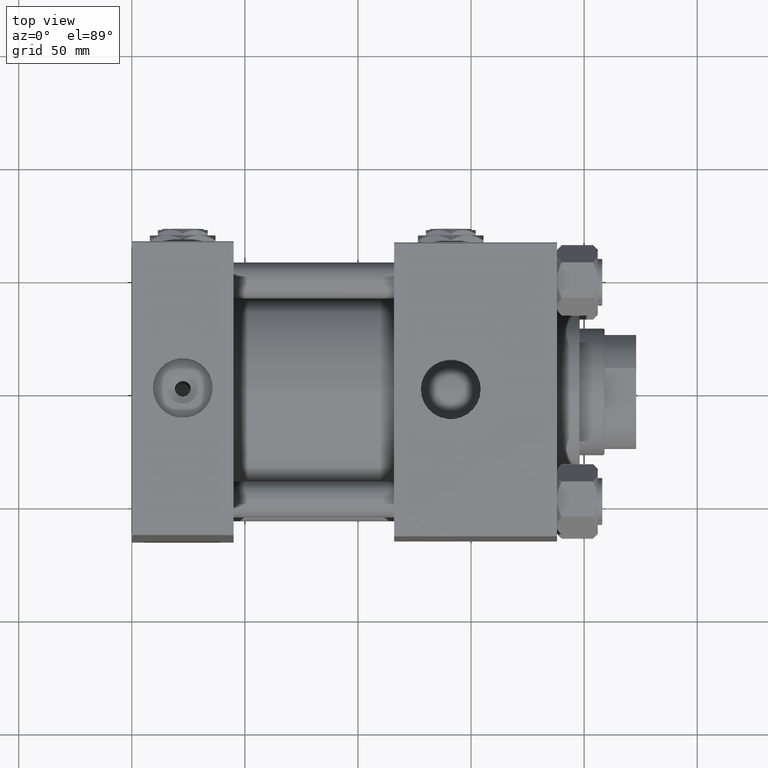
[diagram: clean part render]
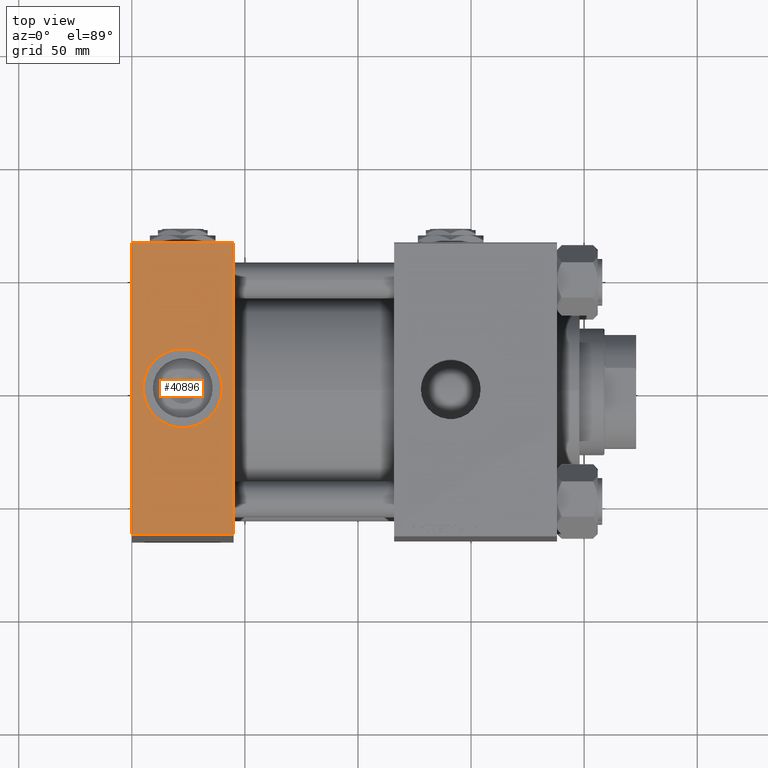
[diagram: same view with one face highlighted and labeled with its STEP entity id]
A machine part, top view. The second image highlights one B-rep face of the part: STEP entity #40896.
In plain terms, the highlighted planar face has unit normal (0, 0, -1).
Its self-contained STEP definition (entity closure, byte-faithful):
#206 = EDGE_CURVE ( 'NONE', #35310, #47038, #4604, .T. ) ;
#354 = EDGE_LOOP ( 'NONE', ( #12120, #50912, #564, #20967 ) ) ;
#564 = ORIENTED_EDGE ( 'NONE', *, *, #14539, .F. ) ;
#2915 = LINE ( 'NONE', #19151, #6895 ) ;
#3351 = CARTESIAN_POINT ( 'NONE',  ( 45.00000000000000000, -64.49999999999994316, 94.99999999999995737 ) ) ;
#4604 = CIRCLE ( 'NONE', #28366, 17.50000000000000000 ) ;
#6895 = VECTOR ( 'NONE', #40413, 1000.000000000000000 ) ;
#7804 = DIRECTION ( 'NONE',  ( 0.000000000000000000, 0.000000000000000000, 1.000000000000000000 ) ) ;
#9137 = FACE_BOUND ( 'NONE', #25778, .T. ) ;
#12120 = ORIENTED_EDGE ( 'NONE', *, *, #50530, .T. ) ;
#12316 = CARTESIAN_POINT ( 'NONE',  ( 40.00000000000000000, -1.187618379707198315E-14, 94.99999999999995737 ) ) ;
#12671 = LINE ( 'NONE', #41093, #14313 ) ;
#14313 = VECTOR ( 'NONE', #28623, 1000.000000000000000 ) ;
#14539 = EDGE_CURVE ( 'NONE', #21057, #46097, #12671, .T. ) ;
#17080 = CARTESIAN_POINT ( 'NONE',  ( 22.50000000000000000, -1.187618379707198315E-14, 94.99999999999995737 ) ) ;
#17723 = AXIS2_PLACEMENT_3D ( 'NONE', #32527, #25074, #24816 ) ;
#19151 = CARTESIAN_POINT ( 'NONE',  ( 0.000000000000000000, 65.00000000000002842, 94.99999999999997158 ) ) ;
#20147 = LINE ( 'NONE', #39826, #22040 ) ;
#20313 = FACE_OUTER_BOUND ( 'NONE', #354, .T. ) ;
#20967 = ORIENTED_EDGE ( 'NONE', *, *, #42670, .T. ) ;
#21057 = VERTEX_POINT ( 'NONE', #49869 ) ;
#22040 = VECTOR ( 'NONE', #35579, 1000.000000000000000 ) ;
#22154 = VERTEX_POINT ( 'NONE', #40089 ) ;
#22614 = EDGE_CURVE ( 'NONE', #47038, #35310, #46041, .T. ) ;
#24007 = DIRECTION ( 'NONE',  ( 1.000000000000000000, 0.000000000000000000, 0.000000000000000000 ) ) ;
#24816 = DIRECTION ( 'NONE',  ( 0.000000000000000000, 1.000000000000000000, 1.067522139062650548E-16 ) ) ;
#25074 = DIRECTION ( 'NONE',  ( 0.000000000000000000, 1.067522139062650548E-16, -1.000000000000000000 ) ) ;
#25778 = EDGE_LOOP ( 'NONE', ( #35248, #48159 ) ) ;
#25840 = DIRECTION ( 'NONE',  ( 0.000000000000000000, 0.000000000000000000, 1.000000000000000000 ) ) ;
#27215 = EDGE_CURVE ( 'NONE', #22154, #46097, #31006, .T. ) ;
#27587 = CARTESIAN_POINT ( 'NONE',  ( 45.00000000000000000, -64.49999999999994316, 94.99999999999995737 ) ) ;
#28366 = AXIS2_PLACEMENT_3D ( 'NONE', #17080, #25840, #49765 ) ;
#28623 = DIRECTION ( 'NONE',  ( 0.000000000000000000, -1.000000000000000000, -1.067522139062650425E-16 ) ) ;
#31006 = LINE ( 'NONE', #3351, #47052 ) ;
#32527 = CARTESIAN_POINT ( 'NONE',  ( 45.00000000000000000, 65.00000000000002842, 94.99999999999997158 ) ) ;
#32754 = CARTESIAN_POINT ( 'NONE',  ( 22.50000000000000000, -1.187618379707198315E-14, 94.99999999999995737 ) ) ;
#35248 = ORIENTED_EDGE ( 'NONE', *, *, #206, .F. ) ;
#35310 = VERTEX_POINT ( 'NONE', #12316 ) ;
#35537 = DIRECTION ( 'NONE',  ( 1.000000000000000000, 0.000000000000000000, 0.000000000000000000 ) ) ;
#35579 = DIRECTION ( 'NONE',  ( -1.000000000000000000, 0.000000000000000000, 0.000000000000000000 ) ) ;
#39826 = CARTESIAN_POINT ( 'NONE',  ( 0.000000000000000000, 64.50000000000000000, 94.99999999999997158 ) ) ;
#40089 = CARTESIAN_POINT ( 'NONE',  ( 0.000000000000000000, -64.49999999999994316, 94.99999999999995737 ) ) ;
#40413 = DIRECTION ( 'NONE',  ( 0.000000000000000000, -1.000000000000000000, -1.067522139062650425E-16 ) ) ;
#40431 = VERTEX_POINT ( 'NONE', #42988 ) ;
#40896 = ADVANCED_FACE ( 'NONE', ( #9137, #20313 ), #45016, .F. ) ;
#41093 = CARTESIAN_POINT ( 'NONE',  ( 45.00000000000000000, 65.00000000000002842, 94.99999999999997158 ) ) ;
#42670 = EDGE_CURVE ( 'NONE', #21057, #40431, #20147, .T. ) ;
#42988 = CARTESIAN_POINT ( 'NONE',  ( 0.000000000000000000, 64.50000000000000000, 94.99999999999997158 ) ) ;
#45016 = PLANE ( 'NONE',  #17723 ) ;
#46041 = CIRCLE ( 'NONE', #48584, 17.50000000000000000 ) ;
#46097 = VERTEX_POINT ( 'NONE', #27587 ) ;
#47038 = VERTEX_POINT ( 'NONE', #49877 ) ;
#47052 = VECTOR ( 'NONE', #35537, 1000.000000000000000 ) ;
#48159 = ORIENTED_EDGE ( 'NONE', *, *, #22614, .F. ) ;
#48584 = AXIS2_PLACEMENT_3D ( 'NONE', #32754, #7804, #24007 ) ;
#49765 = DIRECTION ( 'NONE',  ( 1.000000000000000000, 0.000000000000000000, 0.000000000000000000 ) ) ;
#49869 = CARTESIAN_POINT ( 'NONE',  ( 45.00000000000000000, 64.50000000000000000, 94.99999999999997158 ) ) ;
#49877 = CARTESIAN_POINT ( 'NONE',  ( 4.999999999999997335, -9.733051898564114899E-15, 94.99999999999995737 ) ) ;
#50530 = EDGE_CURVE ( 'NONE', #40431, #22154, #2915, .T. ) ;
#50912 = ORIENTED_EDGE ( 'NONE', *, *, #27215, .T. ) ;